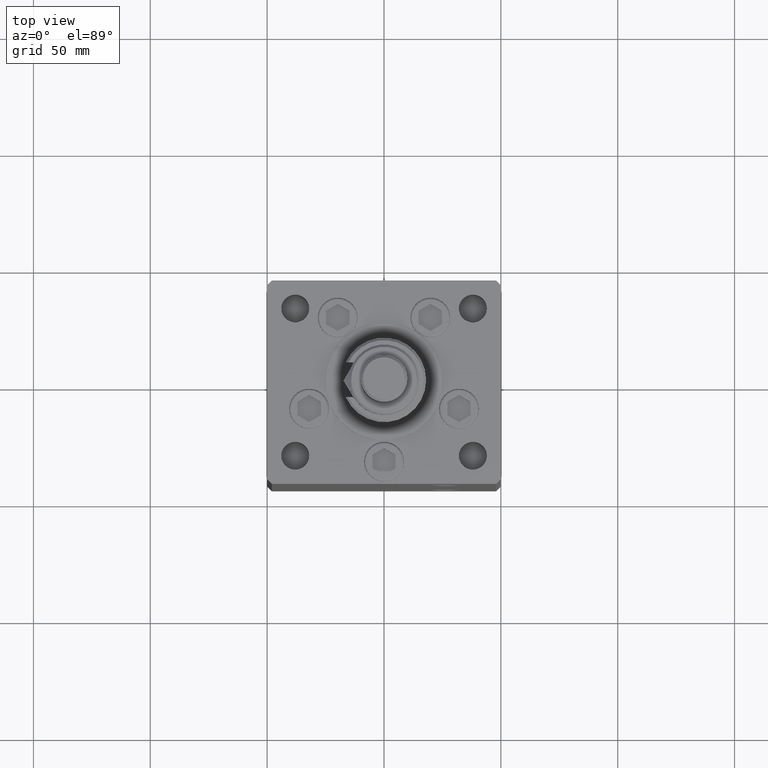
[diagram: clean part render]
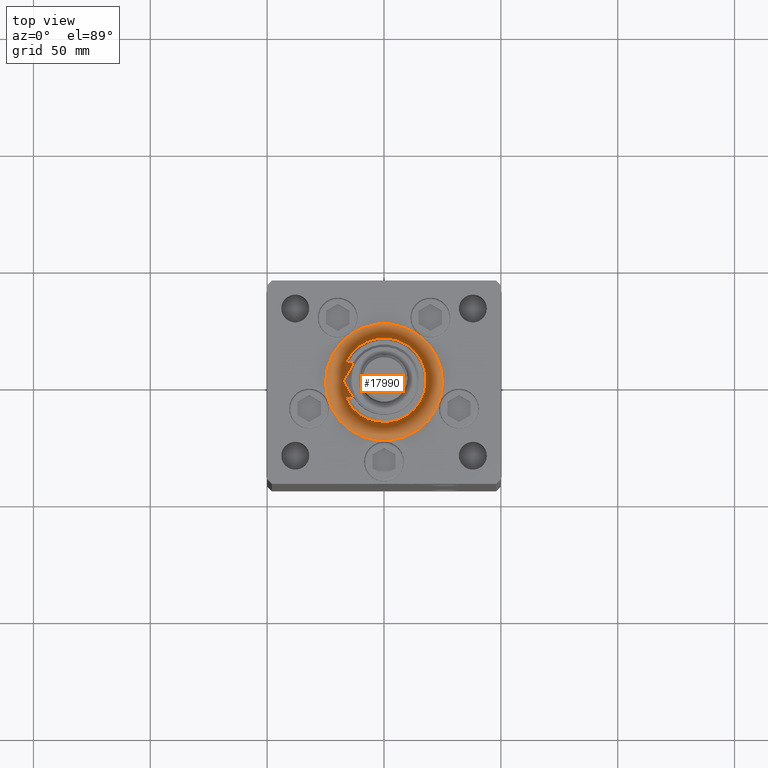
[diagram: same view with one face highlighted and labeled with its STEP entity id]
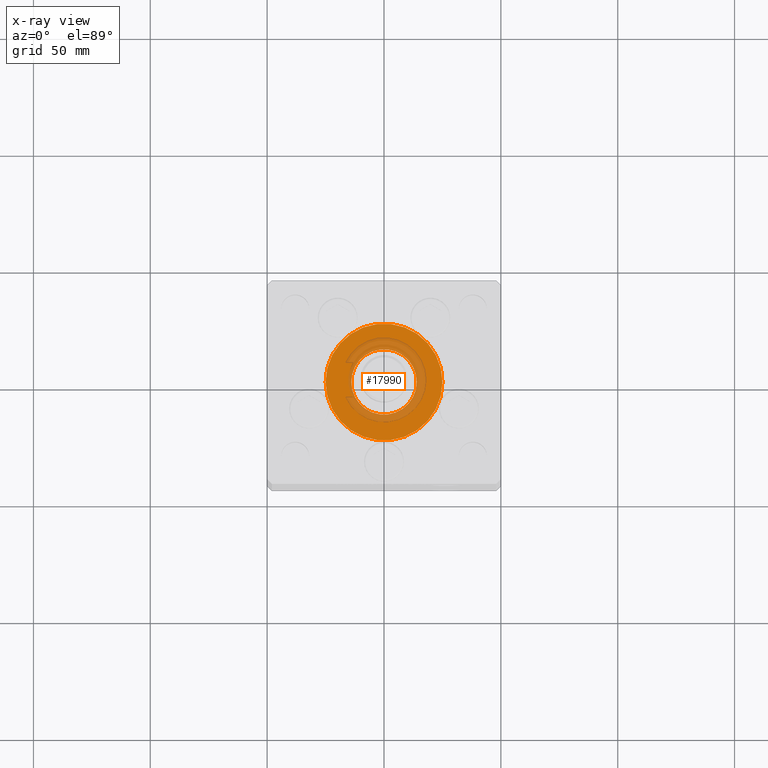
[diagram: x-ray of the same camera — body ghosted, the highlighted face saturated]
A machine part, top view. The second image highlights one B-rep face of the part: STEP entity #17990.
The next image is the same camera in x-ray: the body ghosted, the highlighted face saturated — about 27% of this face is hidden behind the body in this view.
In plain terms, the highlighted planar face has unit normal (0, 0, 1).
Its self-contained STEP definition (entity closure, byte-faithful):
#2749 = AXIS2_PLACEMENT_3D ( 'NONE', #4283, #25676, #25134 ) ;
#3049 = ORIENTED_EDGE ( 'NONE', *, *, #14158, .T. ) ;
#3191 = VERTEX_POINT ( 'NONE', #15310 ) ;
#4237 = DIRECTION ( 'NONE',  ( 0.000000000000000000, 0.000000000000000000, 1.000000000000000000 ) ) ;
#4283 = CARTESIAN_POINT ( 'NONE',  ( 0.000000000000000000, -6.938893903907228378E-15, 2.000000000000000000 ) ) ;
#6071 = DIRECTION ( 'NONE',  ( 1.000000000000000000, 0.000000000000000000, 0.000000000000000000 ) ) ;
#7536 = ORIENTED_EDGE ( 'NONE', *, *, #13461, .F. ) ;
#10381 = FACE_OUTER_BOUND ( 'NONE', #53250, .T. ) ;
#12672 = AXIS2_PLACEMENT_3D ( 'NONE', #16749, #4237, #21465 ) ;
#13461 = EDGE_CURVE ( 'NONE', #3191, #37000, #23096, .T. ) ;
#13463 = DIRECTION ( 'NONE',  ( 0.000000000000000000, 0.000000000000000000, 1.000000000000000000 ) ) ;
#14158 = EDGE_CURVE ( 'NONE', #48631, #23752, #22179, .T. ) ;
#14330 = AXIS2_PLACEMENT_3D ( 'NONE', #34584, #13463, #30417 ) ;
#15310 = CARTESIAN_POINT ( 'NONE',  ( -14.00000000000000000, -5.224388385100933937E-15, 2.000000000000000000 ) ) ;
#16749 = CARTESIAN_POINT ( 'NONE',  ( 0.000000000000000000, -6.938893903907228378E-15, 2.000000000000000000 ) ) ;
#16871 = AXIS2_PLACEMENT_3D ( 'NONE', #32180, #49157, #6071 ) ;
#17990 = ADVANCED_FACE ( 'NONE', ( #18720, #10381 ), #23157, .T. ) ;
#18720 = FACE_BOUND ( 'NONE', #33373, .T. ) ;
#20431 = AXIS2_PLACEMENT_3D ( 'NONE', #30684, #52092, #26765 ) ;
#20801 = ORIENTED_EDGE ( 'NONE', *, *, #45833, .T. ) ;
#21360 = CIRCLE ( 'NONE', #2749, 14.00000000000000000 ) ;
#21465 = DIRECTION ( 'NONE',  ( 1.000000000000000000, 0.000000000000000000, 0.000000000000000000 ) ) ;
#22179 = CIRCLE ( 'NONE', #16871, 25.00000000000000000 ) ;
#23096 = CIRCLE ( 'NONE', #20431, 14.00000000000000000 ) ;
#23157 = PLANE ( 'NONE',  #14330 ) ;
#23752 = VERTEX_POINT ( 'NONE', #54226 ) ;
#25134 = DIRECTION ( 'NONE',  ( 1.000000000000000000, 0.000000000000000000, 0.000000000000000000 ) ) ;
#25676 = DIRECTION ( 'NONE',  ( 0.000000000000000000, 0.000000000000000000, 1.000000000000000000 ) ) ;
#26765 = DIRECTION ( 'NONE',  ( 1.000000000000000000, 0.000000000000000000, 0.000000000000000000 ) ) ;
#26862 = CIRCLE ( 'NONE', #12672, 25.00000000000000000 ) ;
#30417 = DIRECTION ( 'NONE',  ( 1.000000000000000000, 0.000000000000000000, -0.000000000000000000 ) ) ;
#30684 = CARTESIAN_POINT ( 'NONE',  ( 0.000000000000000000, -6.938893903907228378E-15, 2.000000000000000000 ) ) ;
#32180 = CARTESIAN_POINT ( 'NONE',  ( 0.000000000000000000, -6.938893903907228378E-15, 2.000000000000000000 ) ) ;
#33373 = EDGE_LOOP ( 'NONE', ( #34987, #7536 ) ) ;
#34584 = CARTESIAN_POINT ( 'NONE',  ( 0.000000000000000000, -6.938893903907228378E-15, 2.000000000000000000 ) ) ;
#34987 = ORIENTED_EDGE ( 'NONE', *, *, #36573, .F. ) ;
#36573 = EDGE_CURVE ( 'NONE', #37000, #3191, #21360, .T. ) ;
#37000 = VERTEX_POINT ( 'NONE', #44478 ) ;
#39476 = CARTESIAN_POINT ( 'NONE',  ( -25.00000000000000000, -6.938893903907228378E-15, 2.000000000000000000 ) ) ;
#44478 = CARTESIAN_POINT ( 'NONE',  ( 14.00000000000000000, -6.938893903907228378E-15, 2.000000000000000000 ) ) ;
#45833 = EDGE_CURVE ( 'NONE', #23752, #48631, #26862, .T. ) ;
#48631 = VERTEX_POINT ( 'NONE', #39476 ) ;
#49157 = DIRECTION ( 'NONE',  ( 0.000000000000000000, 0.000000000000000000, 1.000000000000000000 ) ) ;
#52092 = DIRECTION ( 'NONE',  ( 0.000000000000000000, 0.000000000000000000, 1.000000000000000000 ) ) ;
#53250 = EDGE_LOOP ( 'NONE', ( #3049, #20801 ) ) ;
#54226 = CARTESIAN_POINT ( 'NONE',  ( 25.00000000000000000, -3.877276906038844941E-15, 2.000000000000000000 ) ) ;